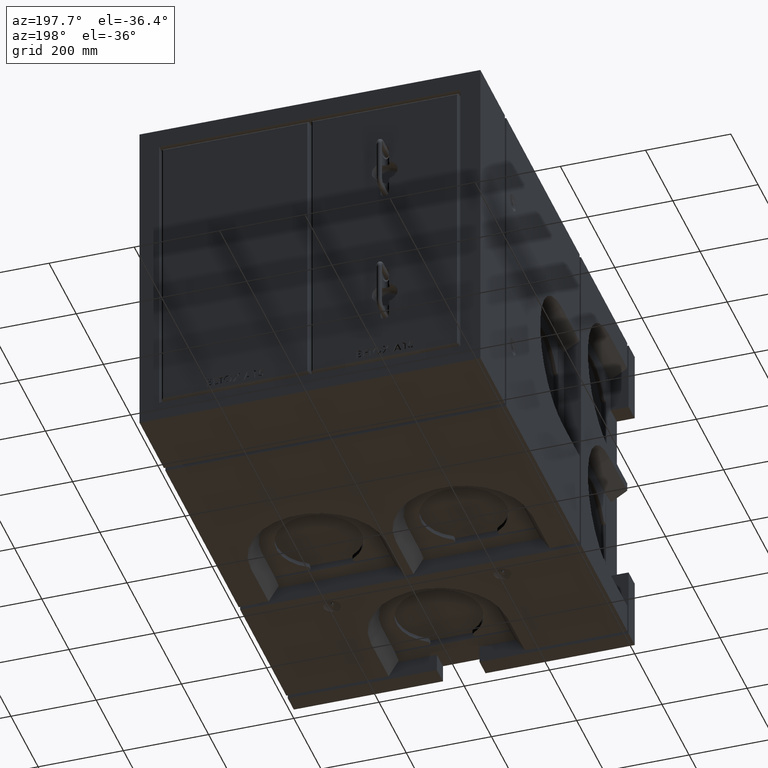
[diagram: clean part render]
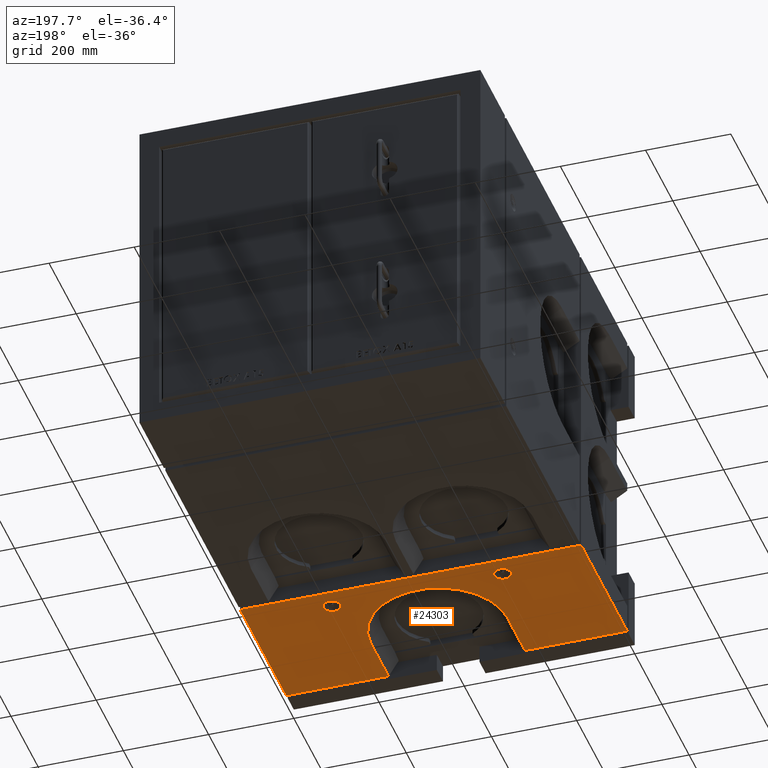
[diagram: same view with one face highlighted and labeled with its STEP entity id]
A machine part, auxiliary view. The second image highlights one B-rep face of the part: STEP entity #24303.
In plain terms, the highlighted planar face has unit normal (0, 0, 1).
Its self-contained STEP definition (entity closure, byte-faithful):
#410 = LINE ( 'NONE', #10876, #4396 ) ;
#484 = VECTOR ( 'NONE', #6790, 1000.000000000000000 ) ;
#549 = DIRECTION ( 'NONE',  ( -1.734723475976807403E-17, -0.000000000000000000, 1.000000000000000000 ) ) ;
#664 = EDGE_CURVE ( 'NONE', #20140, #22735, #26115, .T. ) ;
#1624 = LINE ( 'NONE', #23938, #15062 ) ;
#2003 = EDGE_CURVE ( 'NONE', #20336, #5294, #8620, .T. ) ;
#2606 = CARTESIAN_POINT ( 'NONE',  ( 159.9999999999999716, 184.9999999999999716, -399.9999999999999432 ) ) ;
#2732 = AXIS2_PLACEMENT_3D ( 'NONE', #6654, #549, #11721 ) ;
#3443 = CARTESIAN_POINT ( 'NONE',  ( -399.9999999999999432, 54.99999999999993605, -399.9999999999999432 ) ) ;
#3900 = ORIENTED_EDGE ( 'NONE', *, *, #24189, .F. ) ;
#3925 = CARTESIAN_POINT ( 'NONE',  ( 159.9999999999999716, 184.9999999999999716, -399.9999999999999432 ) ) ;
#4096 = DIRECTION ( 'NONE',  ( -1.000000000000000000, 0.000000000000000000, 0.000000000000000000 ) ) ;
#4297 = EDGE_CURVE ( 'NONE', #19141, #19141, #15460, .T. ) ;
#4396 = VECTOR ( 'NONE', #27887, 1000.000000000000000 ) ;
#4487 = PLANE ( 'NONE',  #12784 ) ;
#4576 = DIRECTION ( 'NONE',  ( 1.000000000000000000, 0.000000000000000000, 0.000000000000000000 ) ) ;
#5294 = VERTEX_POINT ( 'NONE', #3443 ) ;
#5385 = VECTOR ( 'NONE', #5409, 1000.000000000000000 ) ;
#5409 = DIRECTION ( 'NONE',  ( -0.000000000000000000, -1.000000000000000000, 0.000000000000000000 ) ) ;
#5564 = LINE ( 'NONE', #15628, #20029 ) ;
#5740 = CIRCLE ( 'NONE', #17385, 160.0000000000000284 ) ;
#6289 = ORIENTED_EDGE ( 'NONE', *, *, #17540, .T. ) ;
#6482 = VERTEX_POINT ( 'NONE', #26417 ) ;
#6654 = CARTESIAN_POINT ( 'NONE',  ( -200.0000000000000000, 345.0000000000000000, -399.9999999999999432 ) ) ;
#6693 = VERTEX_POINT ( 'NONE', #20886 ) ;
#6753 = CARTESIAN_POINT ( 'NONE',  ( 219.9999999999999432, 345.0000000000000000, -399.9999999999999432 ) ) ;
#6790 = DIRECTION ( 'NONE',  ( -1.000000000000000000, 0.000000000000000000, 0.000000000000000000 ) ) ;
#6987 = CARTESIAN_POINT ( 'NONE',  ( -160.0000000000000853, 54.99999999999993605, -399.9999999999999432 ) ) ;
#7856 = CARTESIAN_POINT ( 'NONE',  ( 400.0000000000000000, 54.99999999999993605, -399.9999999999999432 ) ) ;
#8428 = CARTESIAN_POINT ( 'NONE',  ( 400.0000000000000000, 54.99999999999993605, -399.9999999999999432 ) ) ;
#8469 = ORIENTED_EDGE ( 'NONE', *, *, #9857, .T. ) ;
#8470 = FACE_BOUND ( 'NONE', #9050, .T. ) ;
#8620 = LINE ( 'NONE', #8428, #16740 ) ;
#8747 = CIRCLE ( 'NONE', #2732, 20.00000000000001776 ) ;
#8750 = EDGE_CURVE ( 'NONE', #20140, #13015, #10745, .T. ) ;
#8877 = VECTOR ( 'NONE', #8980, 1000.000000000000000 ) ;
#8980 = DIRECTION ( 'NONE',  ( 0.000000000000000000, 1.000000000000000000, 0.000000000000000000 ) ) ;
#9050 = EDGE_LOOP ( 'NONE', ( #12098 ) ) ;
#9404 = DIRECTION ( 'NONE',  ( 1.000000000000000000, 0.000000000000000000, 0.000000000000000000 ) ) ;
#9576 = DIRECTION ( 'NONE',  ( -1.000000000000000000, 0.000000000000000000, 0.000000000000000000 ) ) ;
#9857 = EDGE_CURVE ( 'NONE', #25133, #20336, #1624, .T. ) ;
#10519 = EDGE_CURVE ( 'NONE', #13015, #6482, #5564, .T. ) ;
#10745 = LINE ( 'NONE', #14074, #5385 ) ;
#10876 = CARTESIAN_POINT ( 'NONE',  ( -399.9999999999999432, 429.9999999999999432, -399.9999999999999432 ) ) ;
#11721 = DIRECTION ( 'NONE',  ( 1.000000000000000000, 0.000000000000000000, 0.000000000000000000 ) ) ;
#12098 = ORIENTED_EDGE ( 'NONE', *, *, #4297, .T. ) ;
#12689 = ORIENTED_EDGE ( 'NONE', *, *, #10519, .T. ) ;
#12778 = DIRECTION ( 'NONE',  ( 1.000000000000000000, 0.000000000000000000, 0.000000000000000000 ) ) ;
#12784 = AXIS2_PLACEMENT_3D ( 'NONE', #17673, #24226, #4576 ) ;
#12876 = VERTEX_POINT ( 'NONE', #3925 ) ;
#13015 = VERTEX_POINT ( 'NONE', #7856 ) ;
#13055 = CARTESIAN_POINT ( 'NONE',  ( 400.0000000000000000, 394.9999999999998863, -399.9999999999999432 ) ) ;
#14074 = CARTESIAN_POINT ( 'NONE',  ( 400.0000000000000000, 429.9999999999999432, -399.9999999999999432 ) ) ;
#14203 = FACE_BOUND ( 'NONE', #19905, .T. ) ;
#14866 = ORIENTED_EDGE ( 'NONE', *, *, #8750, .T. ) ;
#15062 = VECTOR ( 'NONE', #26112, 1000.000000000000000 ) ;
#15180 = CARTESIAN_POINT ( 'NONE',  ( 400.0000000000000000, 394.9999999999998863, -399.9999999999999432 ) ) ;
#15460 = CIRCLE ( 'NONE', #17423, 20.00000000000001776 ) ;
#15628 = CARTESIAN_POINT ( 'NONE',  ( 400.0000000000000000, 54.99999999999993605, -399.9999999999999432 ) ) ;
#16024 = CARTESIAN_POINT ( 'NONE',  ( -399.9999999999999432, 394.9999999999998863, -399.9999999999999432 ) ) ;
#16157 = ORIENTED_EDGE ( 'NONE', *, *, #18734, .T. ) ;
#16371 = ORIENTED_EDGE ( 'NONE', *, *, #664, .F. ) ;
#16740 = VECTOR ( 'NONE', #4096, 1000.000000000000000 ) ;
#17215 = ORIENTED_EDGE ( 'NONE', *, *, #26778, .T. ) ;
#17385 = AXIS2_PLACEMENT_3D ( 'NONE', #25790, #21297, #12778 ) ;
#17423 = AXIS2_PLACEMENT_3D ( 'NONE', #22261, #24444, #9404 ) ;
#17540 = EDGE_CURVE ( 'NONE', #6693, #6693, #8747, .T. ) ;
#17673 = CARTESIAN_POINT ( 'NONE',  ( 400.0000000000000000, 429.9999999999999432, -399.9999999999999432 ) ) ;
#18734 = EDGE_CURVE ( 'NONE', #6482, #12876, #25144, .T. ) ;
#19141 = VERTEX_POINT ( 'NONE', #6753 ) ;
#19905 = EDGE_LOOP ( 'NONE', ( #6289 ) ) ;
#20029 = VECTOR ( 'NONE', #9576, 1000.000000000000000 ) ;
#20140 = VERTEX_POINT ( 'NONE', #13055 ) ;
#20232 = FACE_OUTER_BOUND ( 'NONE', #23020, .T. ) ;
#20336 = VERTEX_POINT ( 'NONE', #6987 ) ;
#20886 = CARTESIAN_POINT ( 'NONE',  ( -180.0000000000000000, 345.0000000000000000, -399.9999999999999432 ) ) ;
#21297 = DIRECTION ( 'NONE',  ( -0.000000000000000000, -0.000000000000000000, 1.000000000000000000 ) ) ;
#22261 = CARTESIAN_POINT ( 'NONE',  ( 199.9999999999999147, 345.0000000000000000, -399.9999999999999432 ) ) ;
#22735 = VERTEX_POINT ( 'NONE', #16024 ) ;
#23020 = EDGE_LOOP ( 'NONE', ( #8469, #27212, #3900, #16371, #14866, #12689, #16157, #17215 ) ) ;
#23853 = CARTESIAN_POINT ( 'NONE',  ( -160.0000000000000853, 184.9999999999999432, -399.9999999999999432 ) ) ;
#23938 = CARTESIAN_POINT ( 'NONE',  ( -160.0000000000000853, -65.00000000000008527, -399.9999999999999432 ) ) ;
#24189 = EDGE_CURVE ( 'NONE', #22735, #5294, #410, .T. ) ;
#24226 = DIRECTION ( 'NONE',  ( 0.000000000000000000, 0.000000000000000000, 1.000000000000000000 ) ) ;
#24303 = ADVANCED_FACE ( 'NONE', ( #14203, #8470, #20232 ), #4487, .F. ) ;
#24444 = DIRECTION ( 'NONE',  ( -1.734723475976807403E-17, -0.000000000000000000, 1.000000000000000000 ) ) ;
#25133 = VERTEX_POINT ( 'NONE', #23853 ) ;
#25144 = LINE ( 'NONE', #2606, #8877 ) ;
#25790 = CARTESIAN_POINT ( 'NONE',  ( -5.551115123125782702E-14, 184.9999999999999432, -399.9999999999999432 ) ) ;
#26112 = DIRECTION ( 'NONE',  ( 0.000000000000000000, -1.000000000000000000, -0.000000000000000000 ) ) ;
#26115 = LINE ( 'NONE', #15180, #484 ) ;
#26417 = CARTESIAN_POINT ( 'NONE',  ( 159.9999999999999716, 54.99999999999993605, -399.9999999999999432 ) ) ;
#26778 = EDGE_CURVE ( 'NONE', #12876, #25133, #5740, .T. ) ;
#27212 = ORIENTED_EDGE ( 'NONE', *, *, #2003, .T. ) ;
#27887 = DIRECTION ( 'NONE',  ( -0.000000000000000000, -1.000000000000000000, 0.000000000000000000 ) ) ;